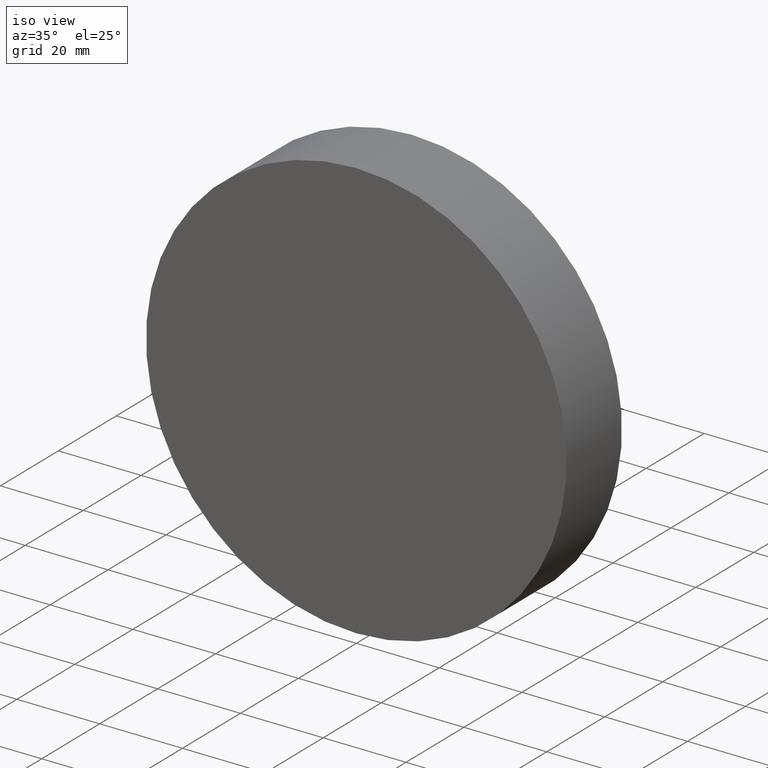
[diagram: clean part render]
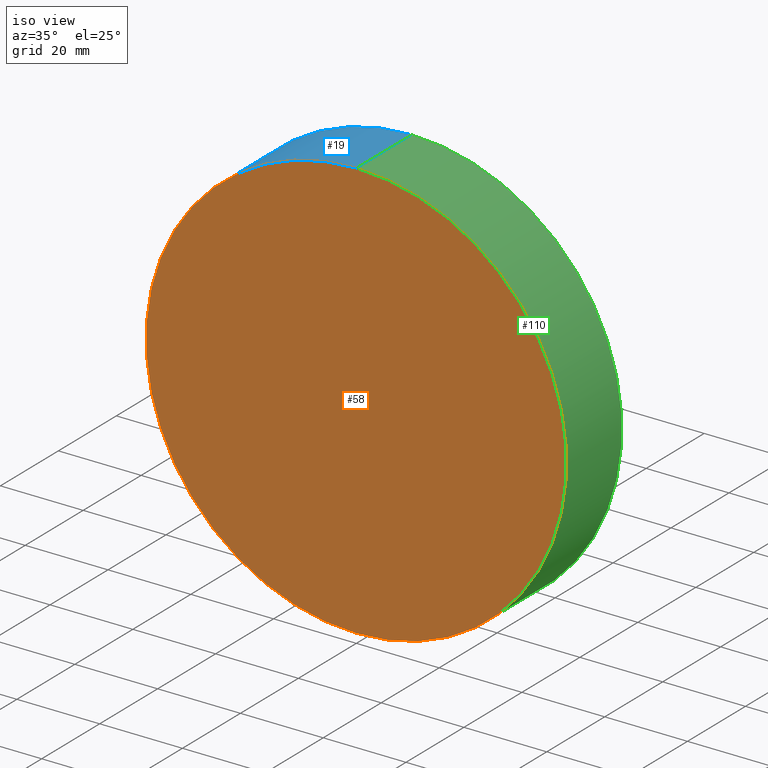
[diagram: same view with three faces highlighted in distinct colors, each labeled with its STEP entity id]
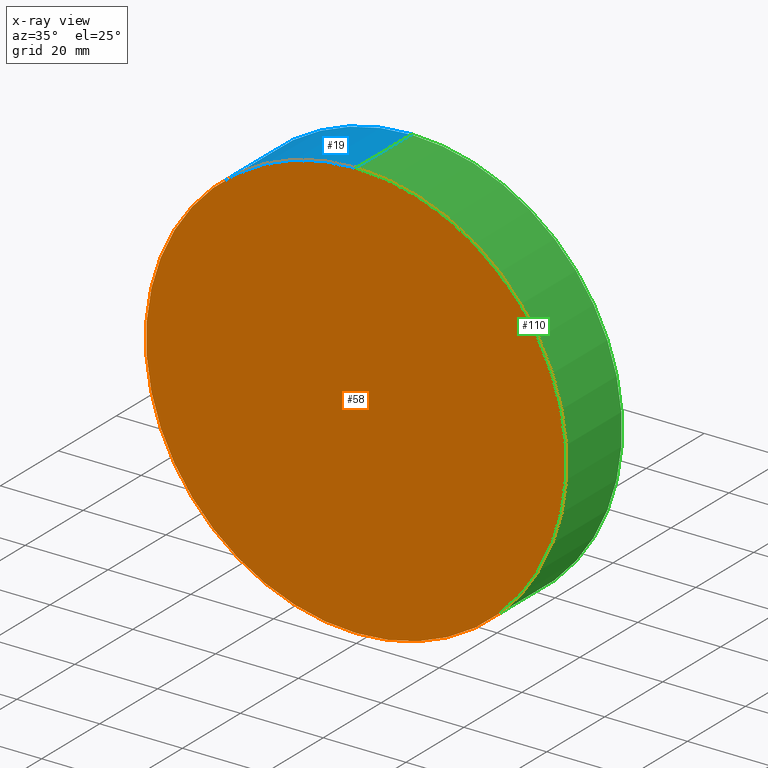
[diagram: x-ray of the same camera — body ghosted, the three highlighted faces saturated]
A machine part, iso view with three faces highlighted in distinct colors.
The next image is the same camera in x-ray (body ghosted, the three faces saturated) — at least one of them is partly hidden behind the body in this view.
Their STEP definitions:

[orange] entity #58 — the highlighted planar face has unit normal (0, 1, 0).
#5 = DIRECTION ( 'NONE',  ( 0.0000000000000000000, 0.0000000000000000000, 1.000000000000000000 ) ) ;
#7 = AXIS2_PLACEMENT_3D ( 'NONE', #90, #96, #73 ) ;
#15 = VERTEX_POINT ( 'NONE', #51 ) ;
#16 = CARTESIAN_POINT ( 'NONE',  ( 0.0000000000000000000, 0.0000000000000000000, -50.79999999999999700 ) ) ;
#31 = CARTESIAN_POINT ( 'NONE',  ( 0.0000000000000000000, 0.0000000000000000000, 0.0000000000000000000 ) ) ;
#33 = ORIENTED_EDGE ( 'NONE', *, *, #34, .F. ) ;
#34 = EDGE_CURVE ( 'NONE', #129, #15, #77, .T. ) ;
#35 = AXIS2_PLACEMENT_3D ( 'NONE', #68, #122, #5 ) ;
#51 = CARTESIAN_POINT ( 'NONE',  ( 6.221205739668553700E-015, 0.0000000000000000000, 50.79999999999999700 ) ) ;
#58 = ADVANCED_FACE ( 'NONE', ( #102 ), #99, .F. ) ;
#67 = EDGE_LOOP ( 'NONE', ( #33, #89 ) ) ;
#68 = CARTESIAN_POINT ( 'NONE',  ( 0.0000000000000000000, 0.0000000000000000000, 0.0000000000000000000 ) ) ;
#73 = DIRECTION ( 'NONE',  ( 0.0000000000000000000, 0.0000000000000000000, 1.000000000000000000 ) ) ;
#77 = CIRCLE ( 'NONE', #7, 50.79999999999999700 ) ;
#83 = DIRECTION ( 'NONE',  ( 0.0000000000000000000, -0.0000000000000000000, 1.000000000000000000 ) ) ;
#89 = ORIENTED_EDGE ( 'NONE', *, *, #113, .F. ) ;
#90 = CARTESIAN_POINT ( 'NONE',  ( 0.0000000000000000000, 0.0000000000000000000, 0.0000000000000000000 ) ) ;
#96 = DIRECTION ( 'NONE',  ( 0.0000000000000000000, 1.000000000000000000, 0.0000000000000000000 ) ) ;
#99 = PLANE ( 'NONE',  #140 ) ;
#100 = CIRCLE ( 'NONE', #35, 50.79999999999999700 ) ;
#102 = FACE_OUTER_BOUND ( 'NONE', #67, .T. ) ;
#112 = DIRECTION ( 'NONE',  ( 0.0000000000000000000, 1.000000000000000000, 0.0000000000000000000 ) ) ;
#113 = EDGE_CURVE ( 'NONE', #15, #129, #100, .T. ) ;
#122 = DIRECTION ( 'NONE',  ( 0.0000000000000000000, 1.000000000000000000, 0.0000000000000000000 ) ) ;
#129 = VERTEX_POINT ( 'NONE', #16 ) ;
#140 = AXIS2_PLACEMENT_3D ( 'NONE', #31, #112, #83 ) ;

[blue] entity #19 — the highlighted cylindrical surface (partial cylindrical patch) has radius 50.8 mm, axis along (-0, -1, -0).
#4 = VERTEX_POINT ( 'NONE', #137 ) ;
#7 = AXIS2_PLACEMENT_3D ( 'NONE', #90, #96, #73 ) ;
#9 = DIRECTION ( 'NONE',  ( 0.0000000000000000000, 0.0000000000000000000, -1.000000000000000000 ) ) ;
#14 = DIRECTION ( 'NONE',  ( -0.0000000000000000000, -1.000000000000000000, -0.0000000000000000000 ) ) ;
#15 = VERTEX_POINT ( 'NONE', #51 ) ;
#16 = CARTESIAN_POINT ( 'NONE',  ( 0.0000000000000000000, 0.0000000000000000000, -50.79999999999999700 ) ) ;
#19 = ADVANCED_FACE ( 'NONE', ( #55 ), #108, .T. ) ;
#20 = CARTESIAN_POINT ( 'NONE',  ( 0.0000000000000000000, 19.10000000000000100, 0.0000000000000000000 ) ) ;
#22 = EDGE_CURVE ( 'NONE', #4, #129, #79, .T. ) ;
#23 = ORIENTED_EDGE ( 'NONE', *, *, #130, .F. ) ;
#28 = VECTOR ( 'NONE', #109, 1000.000000000000000 ) ;
#32 = VECTOR ( 'NONE', #14, 1000.000000000000000 ) ;
#34 = EDGE_CURVE ( 'NONE', #129, #15, #77, .T. ) ;
#37 = DIRECTION ( 'NONE',  ( -0.0000000000000000000, -1.000000000000000000, -0.0000000000000000000 ) ) ;
#40 = VERTEX_POINT ( 'NONE', #116 ) ;
#46 = DIRECTION ( 'NONE',  ( 0.0000000000000000000, 0.0000000000000000000, 1.000000000000000000 ) ) ;
#51 = CARTESIAN_POINT ( 'NONE',  ( 6.221205739668553700E-015, 0.0000000000000000000, 50.79999999999999700 ) ) ;
#52 = LINE ( 'NONE', #88, #28 ) ;
#54 = CARTESIAN_POINT ( 'NONE',  ( 0.0000000000000000000, 19.10000000000000100, -50.79999999999999700 ) ) ;
#55 = FACE_OUTER_BOUND ( 'NONE', #63, .T. ) ;
#60 = ORIENTED_EDGE ( 'NONE', *, *, #22, .T. ) ;
#63 = EDGE_LOOP ( 'NONE', ( #118, #23, #60, #92 ) ) ;
#73 = DIRECTION ( 'NONE',  ( 0.0000000000000000000, 0.0000000000000000000, 1.000000000000000000 ) ) ;
#77 = CIRCLE ( 'NONE', #7, 50.79999999999999700 ) ;
#79 = LINE ( 'NONE', #54, #32 ) ;
#88 = CARTESIAN_POINT ( 'NONE',  ( 6.221205739668553700E-015, 19.10000000000000100, 50.79999999999999700 ) ) ;
#90 = CARTESIAN_POINT ( 'NONE',  ( 0.0000000000000000000, 0.0000000000000000000, 0.0000000000000000000 ) ) ;
#91 = AXIS2_PLACEMENT_3D ( 'NONE', #20, #37, #9 ) ;
#92 = ORIENTED_EDGE ( 'NONE', *, *, #34, .T. ) ;
#93 = CIRCLE ( 'NONE', #115, 50.79999999999999700 ) ;
#96 = DIRECTION ( 'NONE',  ( 0.0000000000000000000, 1.000000000000000000, 0.0000000000000000000 ) ) ;
#101 = EDGE_CURVE ( 'NONE', #40, #15, #52, .T. ) ;
#106 = DIRECTION ( 'NONE',  ( 0.0000000000000000000, 1.000000000000000000, 0.0000000000000000000 ) ) ;
#108 = CYLINDRICAL_SURFACE ( 'NONE', #91, 50.79999999999999700 ) ;
#109 = DIRECTION ( 'NONE',  ( -0.0000000000000000000, -1.000000000000000000, -0.0000000000000000000 ) ) ;
#115 = AXIS2_PLACEMENT_3D ( 'NONE', #121, #106, #46 ) ;
#116 = CARTESIAN_POINT ( 'NONE',  ( 6.221205739668553700E-015, 19.10000000000000100, 50.79999999999999700 ) ) ;
#118 = ORIENTED_EDGE ( 'NONE', *, *, #101, .F. ) ;
#121 = CARTESIAN_POINT ( 'NONE',  ( 0.0000000000000000000, 19.10000000000000100, 0.0000000000000000000 ) ) ;
#129 = VERTEX_POINT ( 'NONE', #16 ) ;
#130 = EDGE_CURVE ( 'NONE', #4, #40, #93, .T. ) ;
#137 = CARTESIAN_POINT ( 'NONE',  ( 0.0000000000000000000, 19.10000000000000100, -50.79999999999999700 ) ) ;

[green] entity #110 — the highlighted cylindrical surface (partial cylindrical patch) has radius 50.8 mm, axis along (-0, -1, -0).
#4 = VERTEX_POINT ( 'NONE', #137 ) ;
#5 = DIRECTION ( 'NONE',  ( 0.0000000000000000000, 0.0000000000000000000, 1.000000000000000000 ) ) ;
#6 = AXIS2_PLACEMENT_3D ( 'NONE', #111, #30, #69 ) ;
#8 = ORIENTED_EDGE ( 'NONE', *, *, #22, .F. ) ;
#12 = ORIENTED_EDGE ( 'NONE', *, *, #101, .T. ) ;
#14 = DIRECTION ( 'NONE',  ( -0.0000000000000000000, -1.000000000000000000, -0.0000000000000000000 ) ) ;
#15 = VERTEX_POINT ( 'NONE', #51 ) ;
#16 = CARTESIAN_POINT ( 'NONE',  ( 0.0000000000000000000, 0.0000000000000000000, -50.79999999999999700 ) ) ;
#22 = EDGE_CURVE ( 'NONE', #4, #129, #79, .T. ) ;
#27 = EDGE_CURVE ( 'NONE', #40, #4, #53, .T. ) ;
#28 = VECTOR ( 'NONE', #109, 1000.000000000000000 ) ;
#30 = DIRECTION ( 'NONE',  ( -0.0000000000000000000, -1.000000000000000000, -0.0000000000000000000 ) ) ;
#32 = VECTOR ( 'NONE', #14, 1000.000000000000000 ) ;
#35 = AXIS2_PLACEMENT_3D ( 'NONE', #68, #122, #5 ) ;
#36 = EDGE_LOOP ( 'NONE', ( #95, #12, #103, #8 ) ) ;
#40 = VERTEX_POINT ( 'NONE', #116 ) ;
#51 = CARTESIAN_POINT ( 'NONE',  ( 6.221205739668553700E-015, 0.0000000000000000000, 50.79999999999999700 ) ) ;
#52 = LINE ( 'NONE', #88, #28 ) ;
#53 = CIRCLE ( 'NONE', #117, 50.79999999999999700 ) ;
#54 = CARTESIAN_POINT ( 'NONE',  ( 0.0000000000000000000, 19.10000000000000100, -50.79999999999999700 ) ) ;
#56 = DIRECTION ( 'NONE',  ( 0.0000000000000000000, 0.0000000000000000000, 1.000000000000000000 ) ) ;
#68 = CARTESIAN_POINT ( 'NONE',  ( 0.0000000000000000000, 0.0000000000000000000, 0.0000000000000000000 ) ) ;
#69 = DIRECTION ( 'NONE',  ( 0.0000000000000000000, 0.0000000000000000000, -1.000000000000000000 ) ) ;
#79 = LINE ( 'NONE', #54, #32 ) ;
#84 = CYLINDRICAL_SURFACE ( 'NONE', #6, 50.79999999999999700 ) ;
#87 = CARTESIAN_POINT ( 'NONE',  ( 0.0000000000000000000, 19.10000000000000100, 0.0000000000000000000 ) ) ;
#88 = CARTESIAN_POINT ( 'NONE',  ( 6.221205739668553700E-015, 19.10000000000000100, 50.79999999999999700 ) ) ;
#95 = ORIENTED_EDGE ( 'NONE', *, *, #27, .F. ) ;
#97 = DIRECTION ( 'NONE',  ( 0.0000000000000000000, 1.000000000000000000, 0.0000000000000000000 ) ) ;
#100 = CIRCLE ( 'NONE', #35, 50.79999999999999700 ) ;
#101 = EDGE_CURVE ( 'NONE', #40, #15, #52, .T. ) ;
#103 = ORIENTED_EDGE ( 'NONE', *, *, #113, .T. ) ;
#109 = DIRECTION ( 'NONE',  ( -0.0000000000000000000, -1.000000000000000000, -0.0000000000000000000 ) ) ;
#110 = ADVANCED_FACE ( 'NONE', ( #139 ), #84, .T. ) ;
#111 = CARTESIAN_POINT ( 'NONE',  ( 0.0000000000000000000, 19.10000000000000100, 0.0000000000000000000 ) ) ;
#113 = EDGE_CURVE ( 'NONE', #15, #129, #100, .T. ) ;
#116 = CARTESIAN_POINT ( 'NONE',  ( 6.221205739668553700E-015, 19.10000000000000100, 50.79999999999999700 ) ) ;
#117 = AXIS2_PLACEMENT_3D ( 'NONE', #87, #97, #56 ) ;
#122 = DIRECTION ( 'NONE',  ( 0.0000000000000000000, 1.000000000000000000, 0.0000000000000000000 ) ) ;
#129 = VERTEX_POINT ( 'NONE', #16 ) ;
#137 = CARTESIAN_POINT ( 'NONE',  ( 0.0000000000000000000, 19.10000000000000100, -50.79999999999999700 ) ) ;
#139 = FACE_OUTER_BOUND ( 'NONE', #36, .T. ) ;